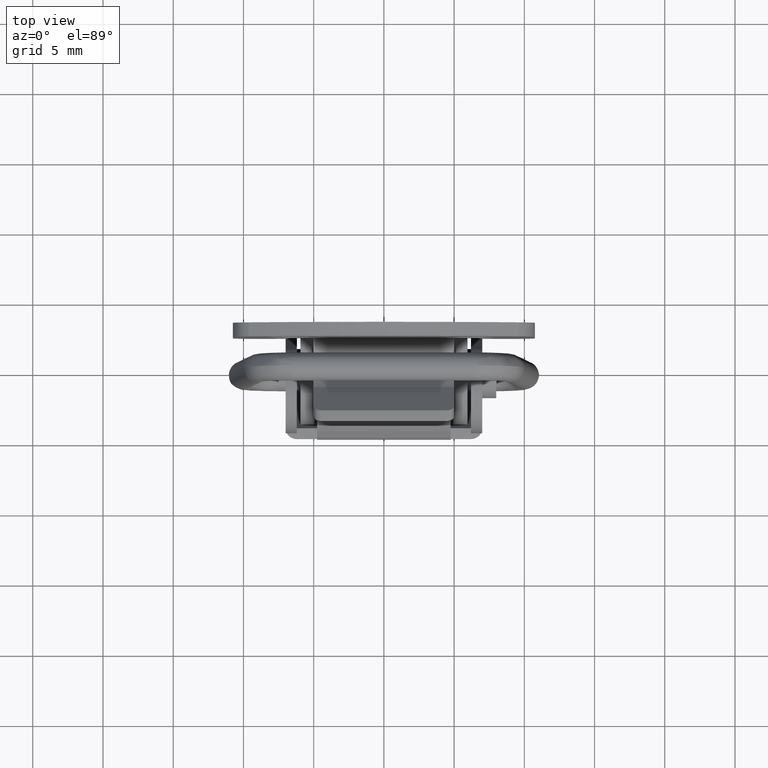
[diagram: clean part render]
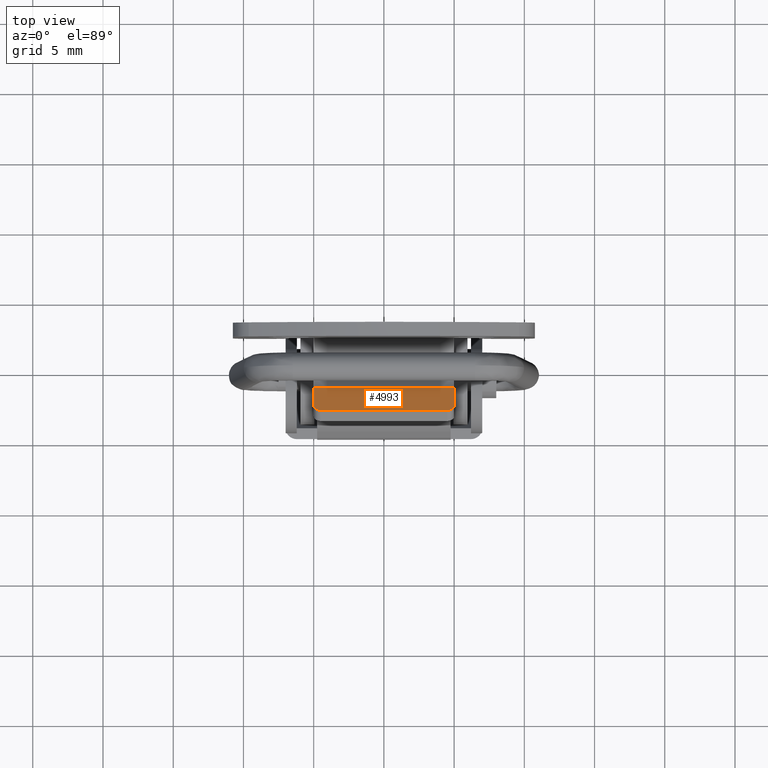
[diagram: same view with one face highlighted and labeled with its STEP entity id]
A machine part, top view. The second image highlights one B-rep face of the part: STEP entity #4993.
In plain terms, the highlighted face is a freeform B-spline surface patch.
Its self-contained STEP definition (entity closure, byte-faithful):
#4434=CARTESIAN_POINT('',(4.499999999999949,-3.148850000000000,1.500000000000000));
#4435=VERTEX_POINT('',#4434);
#4441=CARTESIAN_POINT('',(-4.499999999999949,-3.148850000000000,1.500000000000000));
#4442=VERTEX_POINT('',#4441);
#4443=CARTESIAN_POINT('',(-4.499999999999949,-3.148850000000000,1.500000000000000));
#4444=CARTESIAN_POINT('',(4.499999999999949,-3.148850000000000,1.500000000000000));
#4445=QUASI_UNIFORM_CURVE('',1,(#4443,#4444),.UNSPECIFIED.,.F.,.U.);
#4446=EDGE_CURVE('',#4442,#4435,#4445,.T.);
#4794=CARTESIAN_POINT('',(-5.0,-2.813430136811585,1.129131194864112));
#4795=VERTEX_POINT('',#4794);
#4796=CARTESIAN_POINT('',(-5.0,-2.813430136811585,1.129131194864112));
#4797=CARTESIAN_POINT('',(-5.000105971673222,-2.862839662354760,1.183762579917883));
#4798=CARTESIAN_POINT('',(-4.975154412120529,-2.936849494383796,1.265594161721051));
#4799=CARTESIAN_POINT('',(-4.886624434367223,-3.033237175094222,1.372168601395251));
#4800=CARTESIAN_POINT('',(-4.788206330731500,-3.093073411412894,1.438328647065709));
#4801=CARTESIAN_POINT('',(-4.651336588818550,-3.137878725996778,1.487869223838702));
#4802=CARTESIAN_POINT('',(-4.557275973083339,-3.148872365710025,1.500024729436334));
#4803=CARTESIAN_POINT('',(-4.499999999999949,-3.148850000000000,1.500000000000000));
#4804=B_SPLINE_CURVE_WITH_KNOTS('',3,(#4796,#4797,#4798,#4799,#4800,#4801,#4802,#4803),.UNSPECIFIED.,.F.,.U.,(4,1,1,1,1,4),(0.000000123600205,0.220912124369434,0.331365708977570,0.503174812842723,0.613640695038804,0.785457264946485),.UNSPECIFIED.);
#4805=EDGE_CURVE('',#4795,#4442,#4804,.T.);
#4842=CARTESIAN_POINT('',(5.0,-2.813430136811585,1.129131194864112));
#4843=VERTEX_POINT('',#4842);
#4844=CARTESIAN_POINT('',(4.499999999999949,-3.148850000000000,1.500000000000000));
#4845=CARTESIAN_POINT('',(4.540907349168504,-3.148853000156362,1.500003317228724));
#4846=CARTESIAN_POINT('',(4.635003070058830,-3.141069503969863,1.491397220073271));
#4847=CARTESIAN_POINT('',(4.760645665623049,-3.104936453954282,1.451445438572282));
#4848=CARTESIAN_POINT('',(4.888150368833886,-3.034788992878824,1.373884423475936));
#4849=CARTESIAN_POINT('',(4.978034425459476,-2.936924460087923,1.265677050196567));
#4850=CARTESIAN_POINT('',(5.000026430545520,-2.851843533912713,1.171604322569438));
#4851=CARTESIAN_POINT('',(5.0,-2.813430136811585,1.129131194864112));
#4852=B_SPLINE_CURVE_WITH_KNOTS('',3,(#4844,#4845,#4846,#4847,#4848,#4849,#4850,#4851),.UNSPECIFIED.,.F.,.U.,(4,1,1,1,1,4),(0.000000123601164,0.122726903323267,0.282282575712085,0.404983108017024,0.613640695063991,0.785457264978617),.UNSPECIFIED.);
#4853=EDGE_CURVE('',#4435,#4843,#4852,.T.);
#4964=CARTESIAN_POINT('',(5.499499980618060,-3.232042898853326,1.591985163610266));
#4965=CARTESIAN_POINT('',(5.499499980618060,-1.400133491280101,-0.433530101483675));
#4966=CARTESIAN_POINT('',(-5.499500248838961,-3.232042898853326,1.591985163610266));
#4967=CARTESIAN_POINT('',(-5.499500248838961,-1.400133491280101,-0.433530101483675));
#4968=B_SPLINE_SURFACE_WITH_KNOTS('',1,1,((#4964,#4966),(#4965,#4967)),.UNSPECIFIED.,.F.,.F.,.U.,(2,2),(2,2),(0.0,2.731044519352233),(0.0,10.999000229457019),.UNSPECIFIED.);
#4969=ORIENTED_EDGE('',*,*,#4446,.T.);
#4970=ORIENTED_EDGE('',*,*,#4853,.T.);
#4971=CARTESIAN_POINT('',(5.0,-1.483326434806244,-0.341544888479321));
#4972=VERTEX_POINT('',#4971);
#4973=CARTESIAN_POINT('',(5.0,-1.483326434806244,-0.341544888479321));
#4974=CARTESIAN_POINT('',(5.0,-2.813430136811585,1.129131194864112));
#4975=QUASI_UNIFORM_CURVE('',1,(#4973,#4974),.UNSPECIFIED.,.F.,.U.);
#4976=EDGE_CURVE('',#4972,#4843,#4975,.T.);
#4977=ORIENTED_EDGE('',*,*,#4976,.F.);
#4978=CARTESIAN_POINT('',(-5.0,-1.483326434806244,-0.341544888479321));
#4979=VERTEX_POINT('',#4978);
#4980=CARTESIAN_POINT('',(-5.0,-1.483326434806244,-0.341544888479321));
#4981=CARTESIAN_POINT('',(5.0,-1.483326434806244,-0.341544888479321));
#4982=QUASI_UNIFORM_CURVE('',1,(#4980,#4981),.UNSPECIFIED.,.F.,.U.);
#4983=EDGE_CURVE('',#4979,#4972,#4982,.T.);
#4984=ORIENTED_EDGE('',*,*,#4983,.F.);
#4985=CARTESIAN_POINT('',(-5.0,-1.483326434806244,-0.341544888479321));
#4986=CARTESIAN_POINT('',(-5.0,-2.813430136811585,1.129131194864112));
#4987=QUASI_UNIFORM_CURVE('',1,(#4985,#4986),.UNSPECIFIED.,.F.,.U.);
#4988=EDGE_CURVE('',#4979,#4795,#4987,.T.);
#4989=ORIENTED_EDGE('',*,*,#4988,.T.);
#4990=ORIENTED_EDGE('',*,*,#4805,.T.);
#4991=EDGE_LOOP('',(#4969,#4970,#4977,#4984,#4989,#4990));
#4992=FACE_OUTER_BOUND('',#4991,.T.);
#4993=ADVANCED_FACE('',(#4992),#4968,.T.);